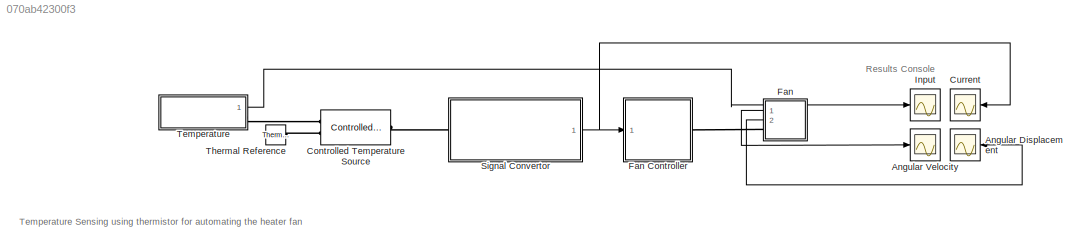
MODEL slx_070ab42300f3
KIND model
CONFIG AbsTol = auto
CONFIG EnableMultiTasking = off
CONFIG FixedStep = auto
CONFIG MaxStep = auto
CONFIG MinStep = auto
CONFIG RelTol = 1e-3
CONFIG SampleTimeConstraint = Unconstrained
CONFIG Solver = VariableStepAuto
CONFIG SolverName = VariableStepAuto
CONFIG StartTime = 0.0
CONFIG StopTime = 50
BLOCK [Scope] Angular Displacement
  Floating = off
  NameLocation = top
  NumInputPorts = 1
  Ports = [1]
  ScopeSpecificationString = Simulink.scopes.TimeScopeBlockCfg('CurrentConfiguration', extmgr.ConfigurationSet(extmgr.Configuration('Core','General UI',true),extmgr.Configuration('Core','Source UI',true),extmgr.Configuration('Sources','WiredSimulink',true,'DataLoggingVariableName','ScopeData4'),extmgr.Configuration('Visuals','Time Domain',true,'SerializedDisplays',{struct('MinYLimReal','-3635.50799','MaxYLimReal','32719.57195...<+1439ch>
BLOCK [Scope] Angular Velocity
  Floating = off
  NumInputPorts = 1
  Ports = [1]
  ScopeSpecificationString = Simulink.scopes.TimeScopeBlockCfg('CurrentConfiguration', extmgr.ConfigurationSet(extmgr.Configuration('Core','General UI',true),extmgr.Configuration('Core','Source UI',true),extmgr.Configuration('Sources','WiredSimulink',true,'DataLoggingVariableName','ScopeData5'),extmgr.Configuration('Visuals','Time Domain',true,'SerializedDisplays',{struct('MinYLimReal','-181.80628','MaxYLimReal','1636.24667',...<+1743ch>
BLOCK [Reference] Controlled Temperature Source  REF=fl_lib/Thermal/Thermal Sources/Controlled
Temperature Source
  Ports = [0, 0, 0, 0, 0, 1, 2]
  SourceBlock = fl_lib/Thermal/Thermal Sources/Controlled\nTemperature Source
  SourceProductBaseCode = SS
  SourceType = Controlled\nTemperature Source
BLOCK [Scope] Current
  Floating = off
  NameLocation = top
  NumInputPorts = 1
  Ports = [1]
  ScopeSpecificationString = Simulink.scopes.TimeScopeBlockCfg('CurrentConfiguration', extmgr.ConfigurationSet(extmgr.Configuration('Core','General UI',true),extmgr.Configuration('Core','Source UI',true),extmgr.Configuration('Sources','WiredSimulink',true,'DataLoggingVariableName','ScopeData6'),extmgr.Configuration('Visuals','Time Domain',true,'SerializedDisplays',{struct('MinYLimReal','0.00941','MaxYLimReal','0.01337','YLabe...<+1429ch>
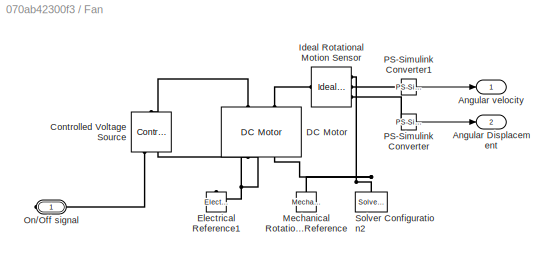
BLOCK [SubSystem] Fan
  NameLocation = top
  Ports = [0, 2, 0, 0, 0, 0, 1]
  RequestExecContextInheritance = off
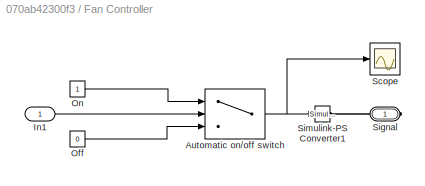
BLOCK [SubSystem] Fan Controller
  Ports = [1, 0, 0, 0, 0, 0, 1]
  RequestExecContextInheritance = off
BLOCK [Switch] Fan Controller/Automatic on//off switch
  Criteria = u2 > Threshold
  InputSameDT = off
  SaturateOnIntegerOverflow = off
  Threshold = 0.01285
BLOCK [Inport] Fan Controller/In1
BLOCK [Constant] Fan Controller/Off
  Value = 0
BLOCK [Constant] Fan Controller/On
BLOCK [Scope] Fan Controller/Scope
  Floating = off
  NumInputPorts = 1
  Ports = [1]
  ScopeSpecificationString = Simulink.scopes.TimeScopeBlockCfg('CurrentConfiguration', extmgr.ConfigurationSet(extmgr.Configuration('Core','General UI',true),extmgr.Configuration('Core','Source UI',true),extmgr.Configuration('Sources','WiredSimulink',true),extmgr.Configuration('Visuals','Time Domain',true,'SerializedDisplays',{struct('MinYLimReal','-0.125','MaxYLimReal','1.125','YLabelReal','','MinYLimMag','0.00000','MaxYLimM...<+1376ch>
BLOCK [PMIOPort] Fan Controller/Signal
  Side = Right
BLOCK [Reference] Fan Controller/Simulink-PS Converter1  REF=nesl_utility/Simulink-PS
Converter
  Ports = [1, 0, 0, 0, 0, 0, 1]
  SourceBlock = nesl_utility/Simulink-PS\nConverter
  SourceProductBaseCode = SS
  SourceType = Simulink-PS\nConverter
BLOCK [Outport] Fan/Angular Displacement
  Port = 2
BLOCK [Outport] Fan/Angular velocity
BLOCK [Reference] Fan/Controlled Voltage Source  REF=fl_lib/Electrical/Electrical Sources/Controlled Voltage
Source
  NameLocation = right
  Ports = [0, 0, 0, 0, 0, 1, 2]
  SourceBlock = fl_lib/Electrical/Electrical Sources/Controlled Voltage\nSource
  SourceProductBaseCode = SS
  SourceType = Controlled Voltage\nSource
BLOCK [Reference] Fan/DC Motor  REF=ee_lib/Electromechanical/Brushed Motors/DC Motor
  NameLocation = right
  Ports = [0, 0, 0, 0, 0, 2, 2]
  SourceBlock = ee_lib/Electromechanical/Brushed Motors/DC Motor
  SourceProductBaseCode = PS
  SourceType = DC Motor
BLOCK [Reference] Fan/Electrical Reference1  REF=fl_lib/Electrical/Electrical Elements/Electrical Reference
  NameLocation = right
  Ports = [0, 0, 0, 0, 0, 1]
  SourceBlock = fl_lib/Electrical/Electrical Elements/Electrical Reference
  SourceProductBaseCode = SS
  SourceType = Electrical Reference
BLOCK [Reference] Fan/Ideal Rotational Motion Sensor  REF=fl_lib/Mechanical/Mechanical Sensors/Ideal Rotational
Motion Sensor
  Ports = [0, 0, 0, 0, 0, 1, 3]
  SourceBlock = fl_lib/Mechanical/Mechanical Sensors/Ideal Rotational\nMotion Sensor
  SourceProductBaseCode = SS
  SourceType = Ideal Rotational\nMotion Sensor
BLOCK [Reference] Fan/Mechanical Rotational Reference  REF=fl_lib/Mechanical/Rotational Elements/Mechanical
Rotational Reference
  NameLocation = right
  Ports = [0, 0, 0, 0, 0, 1]
  SourceBlock = fl_lib/Mechanical/Rotational Elements/Mechanical\nRotational Reference
  SourceProductBaseCode = SS
  SourceType = Mechanical\nRotational Reference
BLOCK [PMIOPort] Fan/On//Off signal
  Side = Right
BLOCK [Reference] Fan/PS-Simulink Converter  REF=nesl_utility/PS-Simulink
Converter
  Ports = [0, 1, 0, 0, 0, 1]
  SourceBlock = nesl_utility/PS-Simulink\nConverter
  SourceProductBaseCode = SS
  SourceType = PS-Simulink\nConverter
BLOCK [Reference] Fan/PS-Simulink Converter1  REF=nesl_utility/PS-Simulink
Converter
  Ports = [0, 1, 0, 0, 0, 1]
  SourceBlock = nesl_utility/PS-Simulink\nConverter
  SourceProductBaseCode = SS
  SourceType = PS-Simulink\nConverter
BLOCK [Reference] Fan/Solver Configuration2  REF=nesl_utility/Solver
Configuration
  NameLocation = left
  Ports = [0, 0, 0, 0, 0, 0, 1]
  SourceBlock = nesl_utility/Solver\nConfiguration
  SourceProductBaseCode = SS
  SourceType = Solver\nConfiguration
BLOCK [Scope] Input
  Floating = off
  NumInputPorts = 1
  Ports = [1]
  ScopeSpecificationString = Simulink.scopes.TimeScopeBlockCfg('CurrentConfiguration', extmgr.ConfigurationSet(extmgr.Configuration('Core','General UI',true),extmgr.Configuration('Core','Source UI',true),extmgr.Configuration('Sources','WiredSimulink',true,'DataLoggingVariableName','ScopeData7'),extmgr.Configuration('Visuals','Time Domain',true,'SerializedDisplays',{struct('MinYLimReal','292.26875','MaxYLimReal','301.08125','Y...<+1401ch>
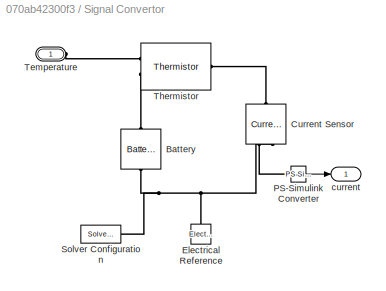
BLOCK [SubSystem] Signal Convertor
  Ports = [0, 1, 0, 0, 0, 1]
  RequestExecContextInheritance = off
BLOCK [Reference] Signal Convertor/Battery  REF=ee_lib/Sources/Battery
  NameLocation = right
  Ports = [0, 0, 0, 0, 0, 1, 1]
  SourceBlock = ee_lib/Sources/Battery
  SourceProductBaseCode = PS
  SourceType = Battery
BLOCK [Reference] Signal Convertor/Current Sensor  REF=fl_lib/Electrical/Electrical Sensors/Current Sensor
  NameLocation = left
  Ports = [0, 0, 0, 0, 0, 1, 2]
  SourceBlock = fl_lib/Electrical/Electrical Sensors/Current Sensor
  SourceProductBaseCode = SS
  SourceType = Current Sensor
BLOCK [Reference] Signal Convertor/Electrical Reference  REF=fl_lib/Electrical/Electrical Elements/Electrical Reference
  NameLocation = right
  Ports = [0, 0, 0, 0, 0, 1]
  SourceBlock = fl_lib/Electrical/Electrical Elements/Electrical Reference
  SourceProductBaseCode = SS
  SourceType = Electrical Reference
BLOCK [Reference] Signal Convertor/PS-Simulink Converter  REF=nesl_utility/PS-Simulink
Converter
  Ports = [0, 1, 0, 0, 0, 1]
  SourceBlock = nesl_utility/PS-Simulink\nConverter
  SourceProductBaseCode = SS
  SourceType = PS-Simulink\nConverter
BLOCK [Reference] Signal Convertor/Solver Configuration  REF=nesl_utility/Solver
Configuration
  Ports = [0, 0, 0, 0, 0, 0, 1]
  SourceBlock = nesl_utility/Solver\nConfiguration
  SourceProductBaseCode = SS
  SourceType = Solver\nConfiguration
BLOCK [PMIOPort] Signal Convertor/Temperature
  Side = Left
BLOCK [Reference] Signal Convertor/Thermistor  REF=ee_lib/Sensors &
Transducers/Thermistor
  Ports = [0, 0, 0, 0, 0, 2, 1]
  SourceBlock = ee_lib/Sensors &\nTransducers/Thermistor
  SourceProductBaseCode = PS
  SourceType = Thermistor
BLOCK [Outport] Signal Convertor/current
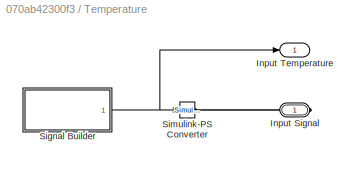
BLOCK [SubSystem] Temperature
  Ports = [0, 1, 0, 0, 0, 0, 1]
  RequestExecContextInheritance = off
BLOCK [PMIOPort] Temperature/Input Signal
  Side = Right
BLOCK [Outport] Temperature/Input Temperature 
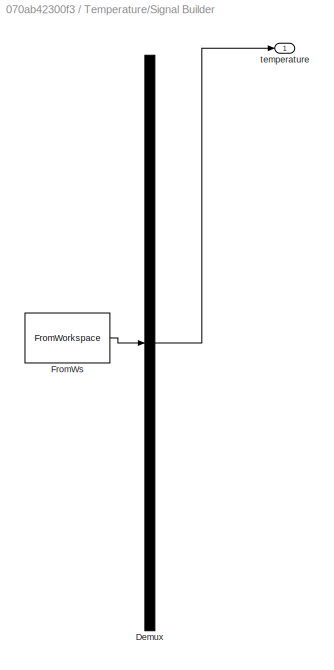
BLOCK [SubSystem] Temperature/Signal Builder
  ClipboardFcn = sigbuilder_block('clipboard');
  CloseFcn = sigbuilder_block('close');
  ContinueFcn = sigbuilder_block('continue');
  CopyFcn = sigbuilder_block('copy');
  DeleteFcn = sigbuilder_block('delete');
  LoadFcn = sigbuilder_block('load');
  MaskHideContents = on
  ModelCloseFcn = sigbuilder_block('modelClose');
  NameChangeFcn = sigbuilder_block('namechange');
  OpenFcn = sigbuilder_block('open',[395.4 60.6 550.8 400.2 ]);
  PauseFcn = sigbuilder_block('pause');
  Ports = [0, 1]
  PreSaveFcn = sigbuilder_block('preSave');
  RequestExecContextInheritance = off
  StartFcn = sigbuilder_block('start');
  StopFcn = sigbuilder_block('stop');
  Tag = STV Subsys
BLOCK [Demux] Temperature/Signal Builder/Demux
  DisplayOption = none
  Outputs = 1
  Ports = [1, 1]
  Tag = STV Demux
BLOCK [FromWorkspace] Temperature/Signal Builder/FromWs
  Tag = STV FromWs
  VariableName = tuvar
BLOCK [Outport] Temperature/Signal Builder/temperature
  Tag = STV Outport
BLOCK [Reference] Temperature/Simulink-PS Converter  REF=nesl_utility/Simulink-PS
Converter
  Ports = [1, 0, 0, 0, 0, 0, 1]
  SourceBlock = nesl_utility/Simulink-PS\nConverter
  SourceProductBaseCode = SS
  SourceType = Simulink-PS\nConverter
BLOCK [Reference] Thermal Reference  REF=fl_lib/Thermal/Thermal Elements/Thermal Reference
  Ports = [0, 0, 0, 0, 0, 1]
  SourceBlock = fl_lib/Thermal/Thermal Elements/Thermal Reference
  SourceProductBaseCode = SS
  SourceType = Thermal Reference
ANNOTATION (root): Temperature Sensing using thermistor for automating the heater fan
ANNOTATION (root): Results Console
NET Fan Controller/Automatic on//off switch:1 -> Fan Controller/Scope:1, Fan Controller/Simulink-PS Converter1:1
LINE Fan Controller/In1:1 -> Fan Controller/Automatic on//off switch:2
LINE Fan Controller/Off:1 -> Fan Controller/Automatic on//off switch:3
LINE Fan Controller/On:1 -> Fan Controller/Automatic on//off switch:1
LINE Fan/PS-Simulink Converter1:1 -> Fan/Angular velocity:1
LINE Fan/PS-Simulink Converter:1 -> Fan/Angular Displacement:1
LINE Fan:1 -> Angular Velocity:1
LINE Fan:2 -> Angular Displacement:1
LINE Signal Convertor/PS-Simulink Converter:1 -> Signal Convertor/current:1
NET Signal Convertor:1 -> Current:1, Fan Controller:1
NET Temperature/Signal Builder:1 -> Temperature/Input Temperature :1, Temperature/Simulink-PS Converter:1
LINE Temperature:1 -> Input:1
PLINE Controlled Temperature Source:LConn1 -- Signal Convertor:LConn1
PLINE Controlled Temperature Source:RConn1 -- Temperature:RConn1
PLINE Controlled Temperature Source:RConn2 -- Thermal Reference:LConn1
PLINE Fan Controller/Signal:RConn1 -- Fan Controller/Simulink-PS Converter1:RConn1
PLINE Fan Controller:RConn1 -- Fan:RConn1
PLINE Fan/Controlled Voltage Source:LConn1 -- Fan/DC Motor:LConn1
PLINE Fan/Controlled Voltage Source:RConn1 -- Fan/On//Off signal:RConn1
PNET net1: Fan/Controlled Voltage Source:RConn2 -- Fan/DC Motor:RConn1 -- Fan/Electrical Reference1:LConn1
PLINE Fan/DC Motor:LConn2 -- Fan/Ideal Rotational Motion Sensor:LConn1
PNET net2: Fan/DC Motor:RConn2 -- Fan/Ideal Rotational Motion Sensor:RConn1 -- Fan/Mechanical Rotational Reference:LConn1 -- Fan/Solver Configuration2:RConn1
PLINE Fan/Ideal Rotational Motion Sensor:RConn2 -- Fan/PS-Simulink Converter1:LConn1
PLINE Fan/Ideal Rotational Motion Sensor:RConn3 -- Fan/PS-Simulink Converter:LConn1
PLINE Signal Convertor/Battery:LConn1 -- Signal Convertor/Thermistor:LConn2
PNET net3: Signal Convertor/Battery:RConn1 -- Signal Convertor/Current Sensor:RConn2 -- Signal Convertor/Electrical Reference:LConn1 -- Signal Convertor/Solver Configuration:RConn1
PLINE Signal Convertor/Current Sensor:LConn1 -- Signal Convertor/Thermistor:RConn1
PLINE Signal Convertor/Current Sensor:RConn1 -- Signal Convertor/PS-Simulink Converter:LConn1
PLINE Signal Convertor/Temperature:RConn1 -- Signal Convertor/Thermistor:LConn1
PLINE Temperature/Input Signal:RConn1 -- Temperature/Simulink-PS Converter:RConn1
note: NET lines group one-source signal fan-out (src -> all destinations, sorted); 1:1 wires keep LINE; PNET lines group multi-terminal physical nets as a canonical sorted terminal list (undirected conserving connections); 2-terminal nets keep the pairwise PLINE form
